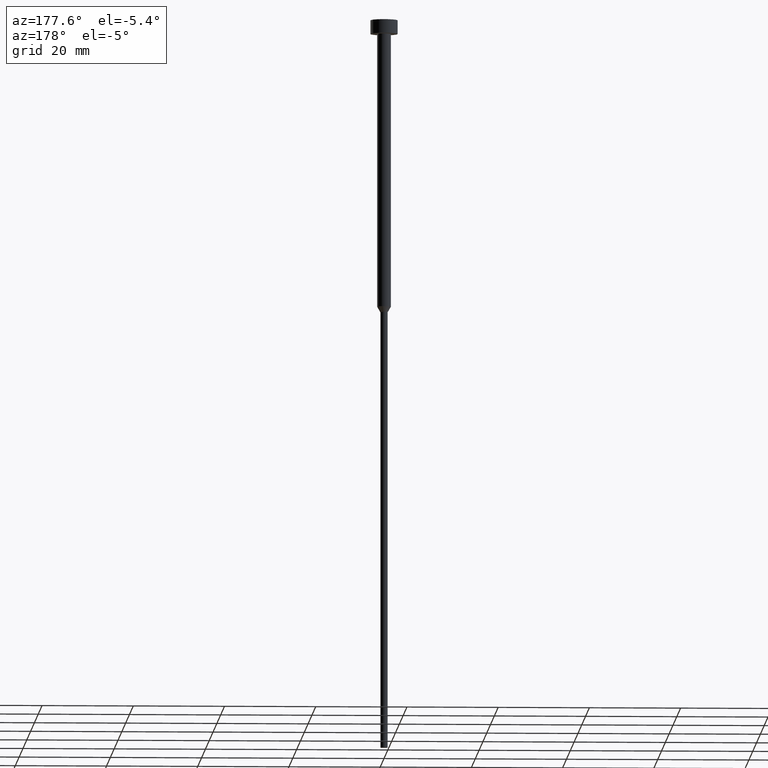
[diagram: clean part render]
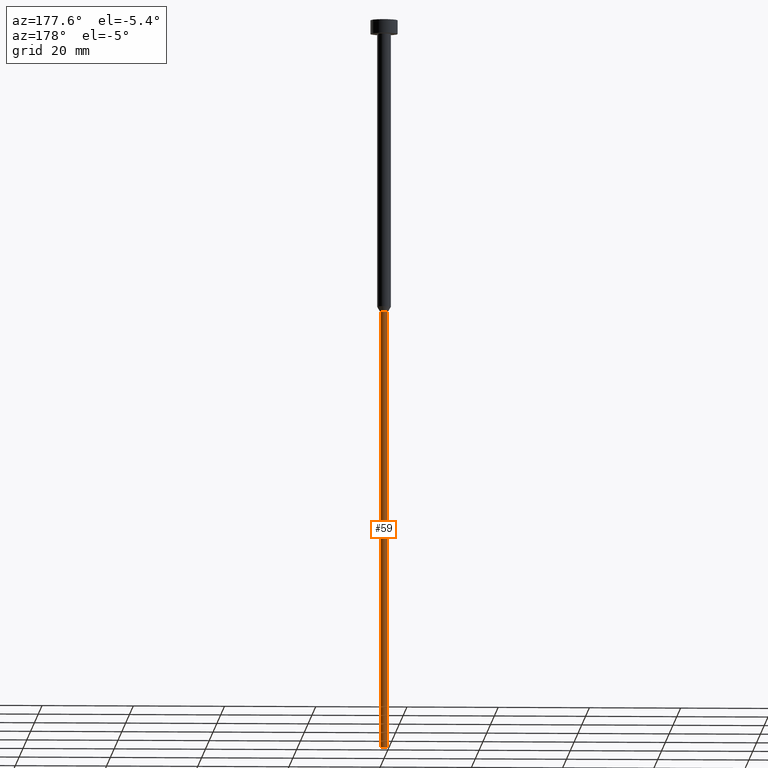
[diagram: same view with one face highlighted and labeled with its STEP entity id]
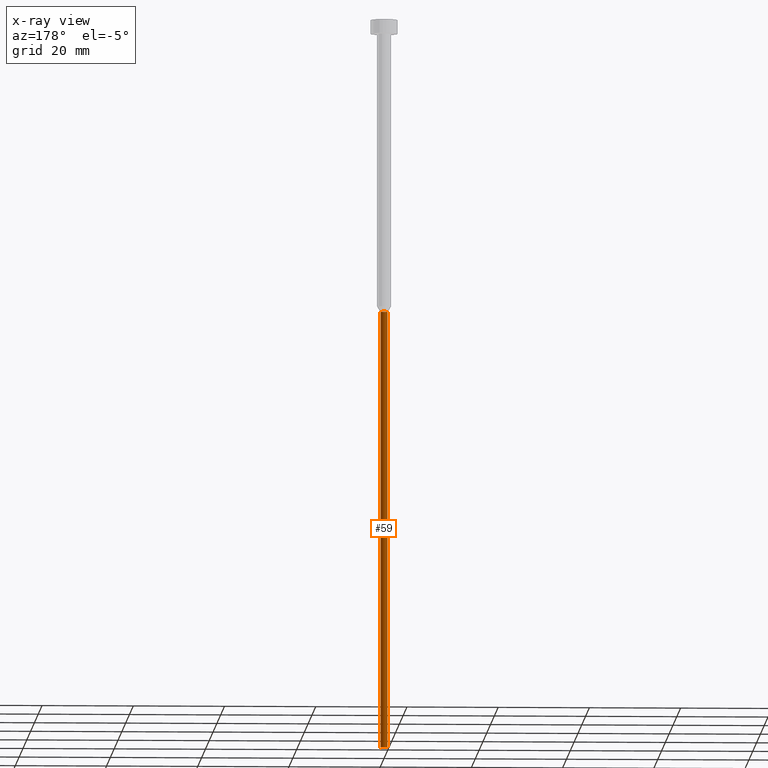
[diagram: x-ray of the same camera — body ghosted, the highlighted face saturated]
A machine part, auxiliary view. The second image highlights one B-rep face of the part: STEP entity #59.
The next image is the same camera in x-ray: the body ghosted, the highlighted face saturated — about 0% of this face is hidden behind the body in this view.
In plain terms, the highlighted cylindrical surface (edge-blend (fillet) strip) has radius 0.8 mm, axis along (-0, -0, 1).
Its self-contained STEP definition (entity closure, byte-faithful):
#8 = VERTEX_POINT ( 'NONE', #44 ) ;
#10 = CIRCLE ( 'NONE', #238, 0.7999999999999999334 ) ;
#16 = CARTESIAN_POINT ( 'NONE',  ( 0.000000000000000000, 0.000000000000000000, -160.0000000000000000 ) ) ;
#21 = CARTESIAN_POINT ( 'NONE',  ( 0.7999999999999999334, 0.000000000000000000, 0.000000000000000000 ) ) ;
#23 = EDGE_CURVE ( 'NONE', #118, #321, #221, .T. ) ;
#30 = DIRECTION ( 'NONE',  ( -0.000000000000000000, -0.000000000000000000, 1.000000000000000000 ) ) ;
#44 = CARTESIAN_POINT ( 'NONE',  ( -0.8000000000000001554, 9.797174393178827383E-17, -64.21243556529820751 ) ) ;
#48 = DIRECTION ( 'NONE',  ( -0.000000000000000000, -0.000000000000000000, 1.000000000000000000 ) ) ;
#59 = ADVANCED_FACE ( 'NONE', ( #308 ), #281, .T. ) ;
#91 = CARTESIAN_POINT ( 'NONE',  ( 0.000000000000000000, 0.000000000000000000, 0.000000000000000000 ) ) ;
#106 = ORIENTED_EDGE ( 'NONE', *, *, #174, .F. ) ;
#118 = VERTEX_POINT ( 'NONE', #283 ) ;
#127 = ORIENTED_EDGE ( 'NONE', *, *, #23, .F. ) ;
#132 = VECTOR ( 'NONE', #143, 1000.000000000000000 ) ;
#134 = CARTESIAN_POINT ( 'NONE',  ( 0.8000000000000000444, 0.000000000000000000, -64.21243556529820751 ) ) ;
#141 = DIRECTION ( 'NONE',  ( 1.000000000000000000, 0.000000000000000000, 0.000000000000000000 ) ) ;
#143 = DIRECTION ( 'NONE',  ( -0.000000000000000000, -0.000000000000000000, 1.000000000000000000 ) ) ;
#160 = DIRECTION ( 'NONE',  ( -0.000000000000000000, -0.000000000000000000, 1.000000000000000000 ) ) ;
#165 = DIRECTION ( 'NONE',  ( 1.000000000000000000, 0.000000000000000000, 0.000000000000000000 ) ) ;
#174 = EDGE_CURVE ( 'NONE', #321, #8, #220, .T. ) ;
#175 = AXIS2_PLACEMENT_3D ( 'NONE', #305, #160, #141 ) ;
#196 = EDGE_CURVE ( 'NONE', #343, #8, #260, .T. ) ;
#198 = AXIS2_PLACEMENT_3D ( 'NONE', #91, #30, #234 ) ;
#202 = ORIENTED_EDGE ( 'NONE', *, *, #196, .T. ) ;
#220 = CIRCLE ( 'NONE', #175, 0.8000000000000000444 ) ;
#221 = LINE ( 'NONE', #21, #290 ) ;
#229 = CARTESIAN_POINT ( 'NONE',  ( -0.7999999999999999334, 9.797174393178824918E-17, 0.000000000000000000 ) ) ;
#234 = DIRECTION ( 'NONE',  ( 1.000000000000000000, 0.000000000000000000, 0.000000000000000000 ) ) ;
#238 = AXIS2_PLACEMENT_3D ( 'NONE', #16, #255, #165 ) ;
#255 = DIRECTION ( 'NONE',  ( -0.000000000000000000, -0.000000000000000000, 1.000000000000000000 ) ) ;
#260 = LINE ( 'NONE', #229, #132 ) ;
#270 = ORIENTED_EDGE ( 'NONE', *, *, #302, .T. ) ;
#281 = CYLINDRICAL_SURFACE ( 'NONE', #198, 0.7999999999999999334 ) ;
#283 = CARTESIAN_POINT ( 'NONE',  ( 0.7999999999999999334, 0.000000000000000000, -160.0000000000000000 ) ) ;
#290 = VECTOR ( 'NONE', #48, 1000.000000000000000 ) ;
#302 = EDGE_CURVE ( 'NONE', #118, #343, #10, .T. ) ;
#305 = CARTESIAN_POINT ( 'NONE',  ( 0.000000000000000000, 0.000000000000000000, -64.21243556529820751 ) ) ;
#306 = EDGE_LOOP ( 'NONE', ( #270, #202, #106, #127 ) ) ;
#308 = FACE_OUTER_BOUND ( 'NONE', #306, .T. ) ;
#321 = VERTEX_POINT ( 'NONE', #134 ) ;
#342 = CARTESIAN_POINT ( 'NONE',  ( -0.7999999999999999334, 9.797174393178824918E-17, -160.0000000000000000 ) ) ;
#343 = VERTEX_POINT ( 'NONE', #342 ) ;